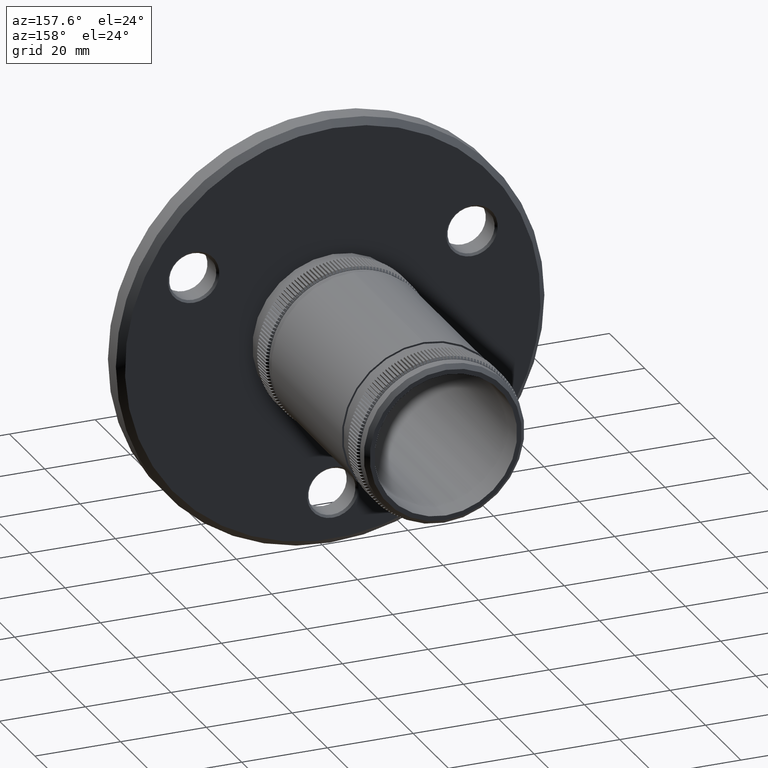
[diagram: clean part render]
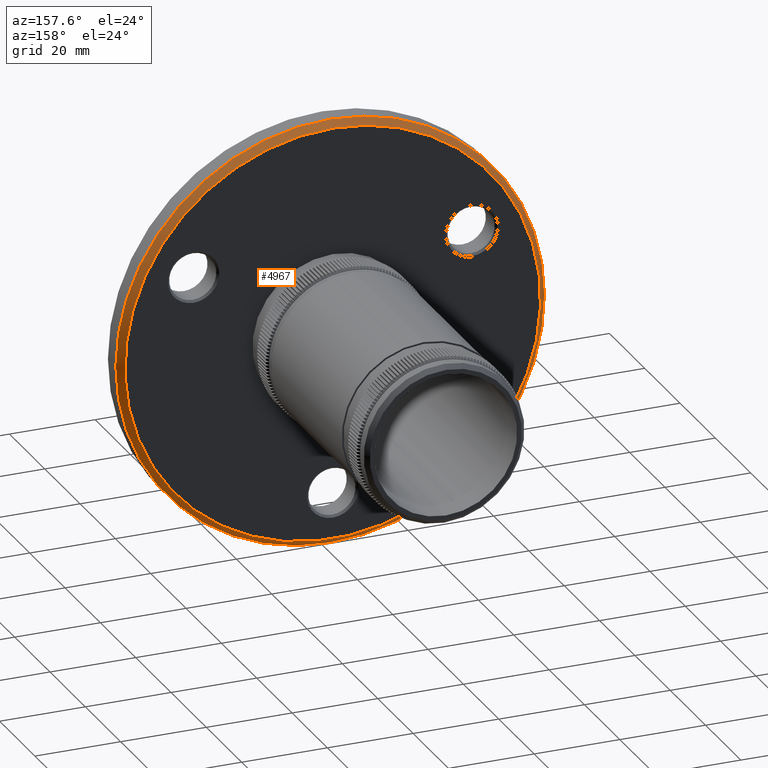
[diagram: same view with one face highlighted and labeled with its STEP entity id]
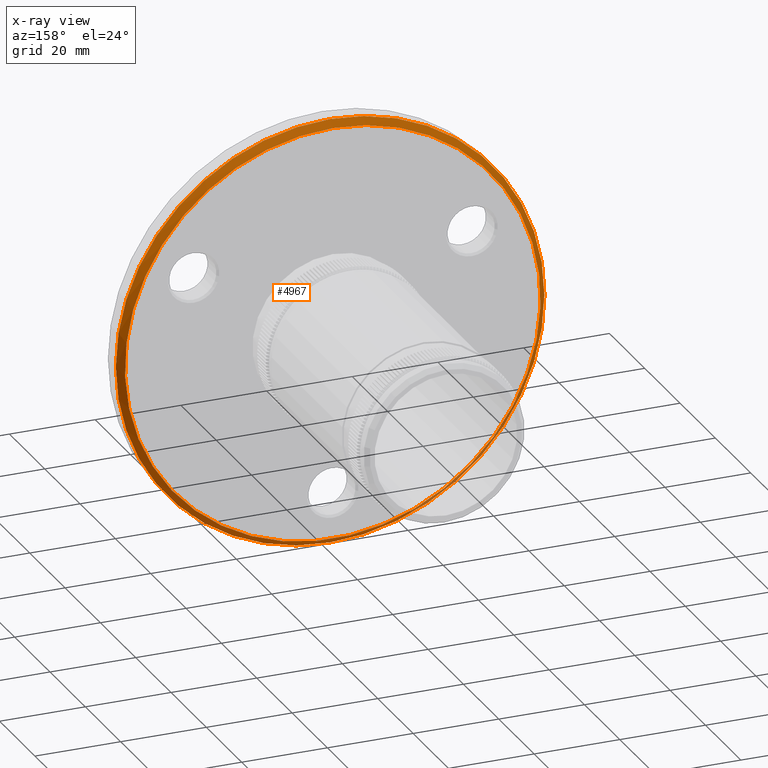
[diagram: x-ray of the same camera — body ghosted, the highlighted face saturated]
A machine part, auxiliary view. The second image highlights one B-rep face of the part: STEP entity #4967.
The next image is the same camera in x-ray: the body ghosted, the highlighted face saturated — about 4% of this face is hidden behind the body in this view.
In plain terms, the highlighted conical surface has half-angle 45 deg.
Its self-contained STEP definition (entity closure, byte-faithful):
#3913 = EDGE_LOOP ( 'NONE', ( #8835 ) ) ;
#4967 = ADVANCED_FACE ( 'NONE', ( #44157, #41967 ), #18789, .T. ) ;
#5522 = EDGE_CURVE ( 'NONE', #10822, #10822, #24194, .T. ) ;
#8835 = ORIENTED_EDGE ( 'NONE', *, *, #11459, .F. ) ;
#10822 = VERTEX_POINT ( 'NONE', #37815 ) ;
#11459 = EDGE_CURVE ( 'NONE', #51523, #51523, #45278, .T. ) ;
#17901 = ORIENTED_EDGE ( 'NONE', *, *, #5522, .F. ) ;
#18789 = CONICAL_SURFACE ( 'NONE', #65739, 48.50000000000000700, 0.7853981633974412800 ) ;
#24194 = CIRCLE ( 'NONE', #81146, 48.50000000000000700 ) ;
#25039 = DIRECTION ( 'NONE',  ( 0.0000000000000000000, -1.000000000000000000, 0.0000000000000000000 ) ) ;
#25347 = CARTESIAN_POINT ( 'NONE',  ( 0.0000000000000000000, 4.499999999999984900, 0.0000000000000000000 ) ) ;
#31637 = CARTESIAN_POINT ( 'NONE',  ( 0.0000000000000000000, 4.499999999999984900, 50.00000000000000000 ) ) ;
#35315 = CARTESIAN_POINT ( 'NONE',  ( 0.0000000000000000000, 6.000000000000000000, 0.0000000000000000000 ) ) ;
#37815 = CARTESIAN_POINT ( 'NONE',  ( 0.0000000000000000000, 6.000000000000000000, 48.50000000000000700 ) ) ;
#39716 = DIRECTION ( 'NONE',  ( 0.0000000000000000000, -1.000000000000000000, 0.0000000000000000000 ) ) ;
#41967 = FACE_BOUND ( 'NONE', #51560, .T. ) ;
#42640 = DIRECTION ( 'NONE',  ( 0.0000000000000000000, 0.0000000000000000000, 1.000000000000000000 ) ) ;
#44157 = FACE_OUTER_BOUND ( 'NONE', #3913, .T. ) ;
#45278 = CIRCLE ( 'NONE', #56703, 50.00000000000000000 ) ;
#49433 = DIRECTION ( 'NONE',  ( 0.0000000000000000000, 1.000000000000000000, 0.0000000000000000000 ) ) ;
#51523 = VERTEX_POINT ( 'NONE', #31637 ) ;
#51560 = EDGE_LOOP ( 'NONE', ( #17901 ) ) ;
#53915 = DIRECTION ( 'NONE',  ( 0.0000000000000000000, 0.0000000000000000000, -1.000000000000000000 ) ) ;
#56703 = AXIS2_PLACEMENT_3D ( 'NONE', #25347, #25039, #75012 ) ;
#61883 = CARTESIAN_POINT ( 'NONE',  ( 0.0000000000000000000, 6.000000000000000000, 0.0000000000000000000 ) ) ;
#65739 = AXIS2_PLACEMENT_3D ( 'NONE', #61883, #39716, #53915 ) ;
#75012 = DIRECTION ( 'NONE',  ( 0.0000000000000000000, 0.0000000000000000000, 1.000000000000000000 ) ) ;
#81146 = AXIS2_PLACEMENT_3D ( 'NONE', #35315, #49433, #42640 ) ;